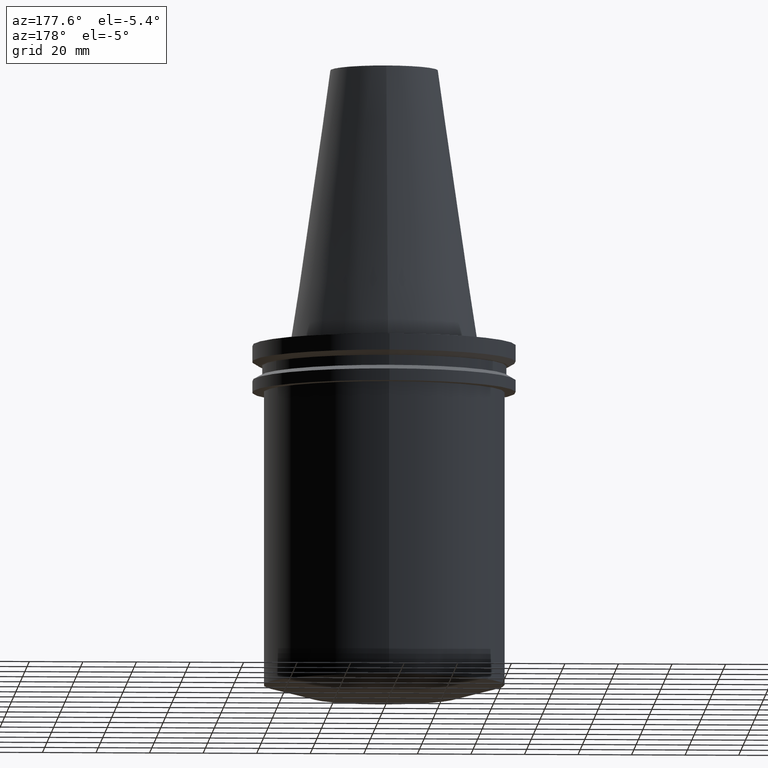
[diagram: clean part render]
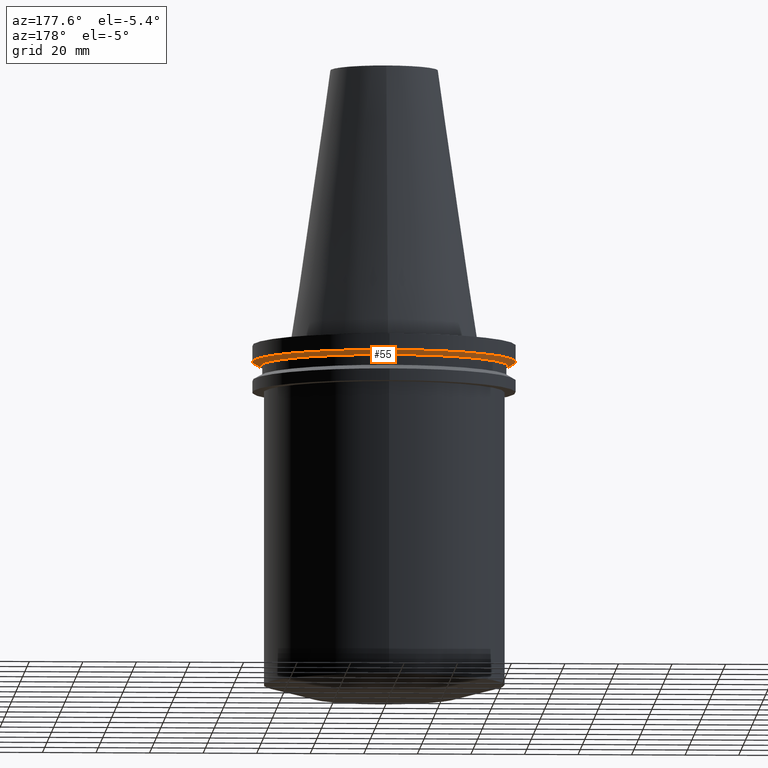
[diagram: same view with one face highlighted and labeled with its STEP entity id]
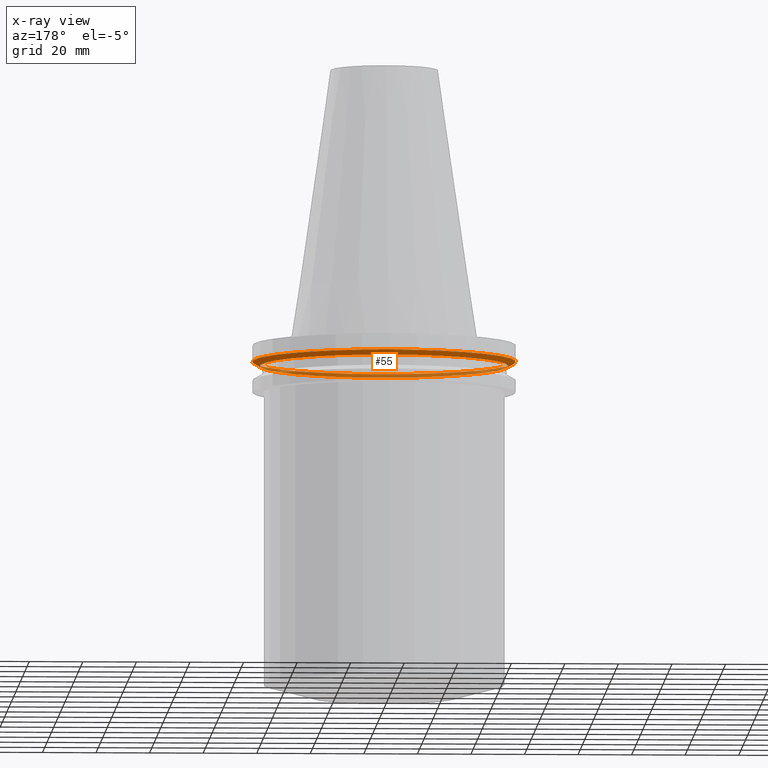
[diagram: x-ray of the same camera — body ghosted, the highlighted face saturated]
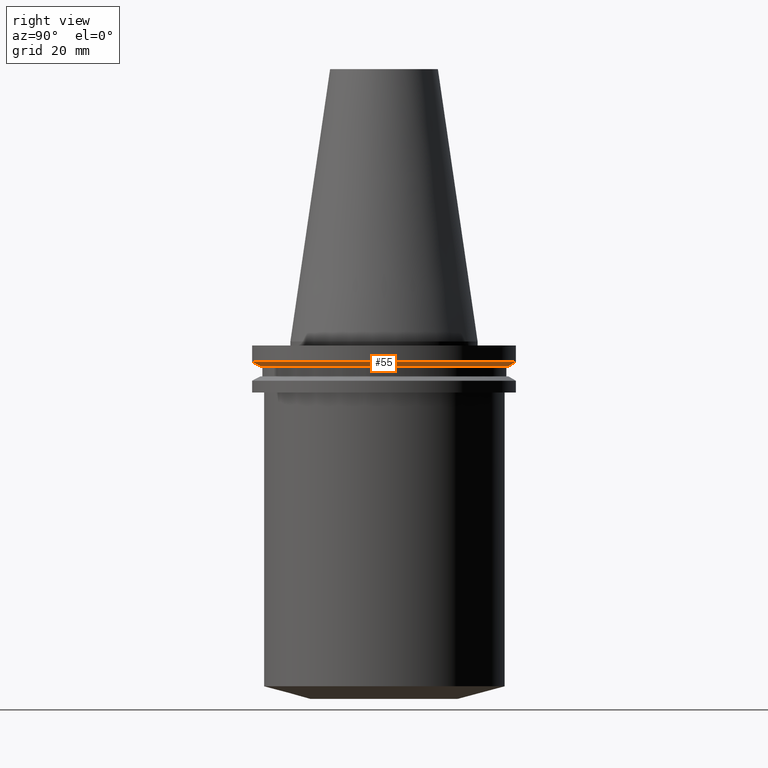
[diagram: same view with one face highlighted and labeled with its STEP entity id]
A machine part, auxiliary view. The second image highlights one B-rep face of the part: STEP entity #55.
The next image is the same camera in x-ray: the body ghosted, the highlighted face saturated — about 36% of this face is hidden behind the body in this view.
A second angle (right view) of the same face is appended — the face is thin or edge-on in the first view.
In plain terms, the highlighted conical surface has half-angle 60 deg.
Its self-contained STEP definition (entity closure, byte-faithful):
#55=ADVANCED_FACE('Unnamed[1]',(#147,#148),#149,.T.);
#91=EDGE_CURVE('Unnamed[1]',#202,#202,#203,.T.);
#114=EDGE_CURVE('Unnamed[1]',#238,#238,#239,.T.);
#147=FACE_BOUND('',#272,.T.);
#148=FACE_BOUND('',#273,.T.);
#149=CONICAL_SURFACE('',#274,47.821518775,1.04719755103024);
#202=VERTEX_POINT('',#340);
#203=CIRCLE('',#341,46.43053755);
#238=VERTEX_POINT('',#386);
#239=CIRCLE('',#387,49.2125);
#272=EDGE_LOOP('',(#418));
#273=EDGE_LOOP('',(#419));
#274=AXIS2_PLACEMENT_3D('',#420,#421,#422);
#340=CARTESIAN_POINT('',(5.63337527607782E-016,46.43053755,-9.2));
#341=AXIS2_PLACEMENT_3D('',#479,#480,#481);
#386=CARTESIAN_POINT('',(4.64988177918915E-016,49.2125,-7.59383323));
#387=AXIS2_PLACEMENT_3D('',#518,#519,#520);
#418=ORIENTED_EDGE('',*,*,#91,.F.);
#419=ORIENTED_EDGE('',*,*,#114,.T.);
#420=CARTESIAN_POINT('',(5.14162852763349E-016,1.0283257055267E-015,-8.39691661500001));
#421=DIRECTION('',(-6.12323399573677E-017,-1.22464679914735E-016,1.0));
#422=DIRECTION('',(-1.23259516440783E-032,1.0,1.22464679914735E-016));
#479=CARTESIAN_POINT('',(5.63337527607783E-016,1.12667505521557E-015,-9.2));
#480=DIRECTION('',(6.12323399573677E-017,1.22464679914735E-016,-1.0));
#481=DIRECTION('',(-1.23259516440783E-032,1.0,1.22464679914735E-016));
#518=CARTESIAN_POINT('',(4.64988177918915E-016,9.29976355837831E-016,-7.59383323));
#519=DIRECTION('',(6.12323399573677E-017,1.22464679914735E-016,-1.0));
#520=DIRECTION('',(-1.23259516440783E-032,1.0,1.22464679914735E-016));